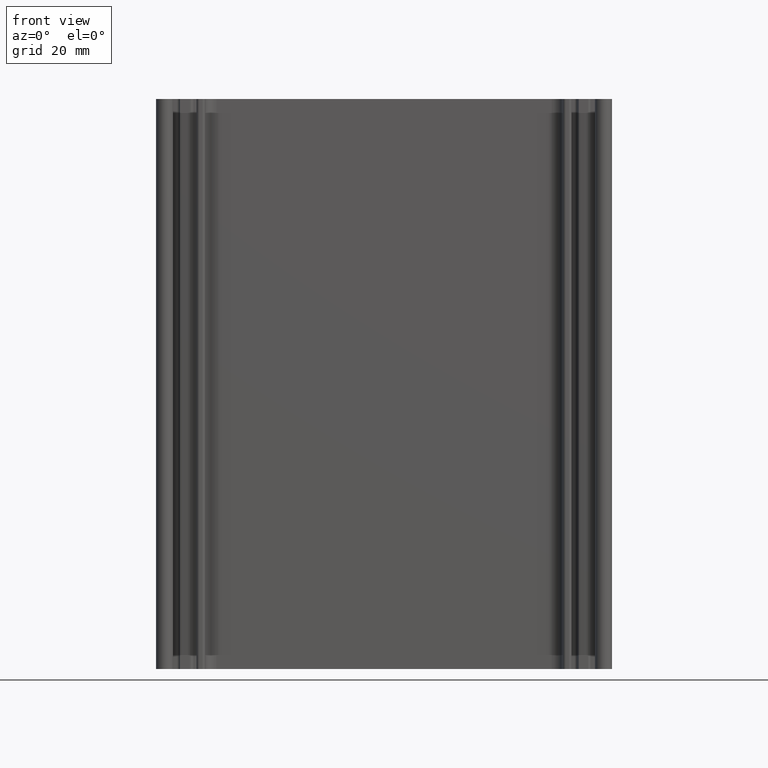
[diagram: clean part render]
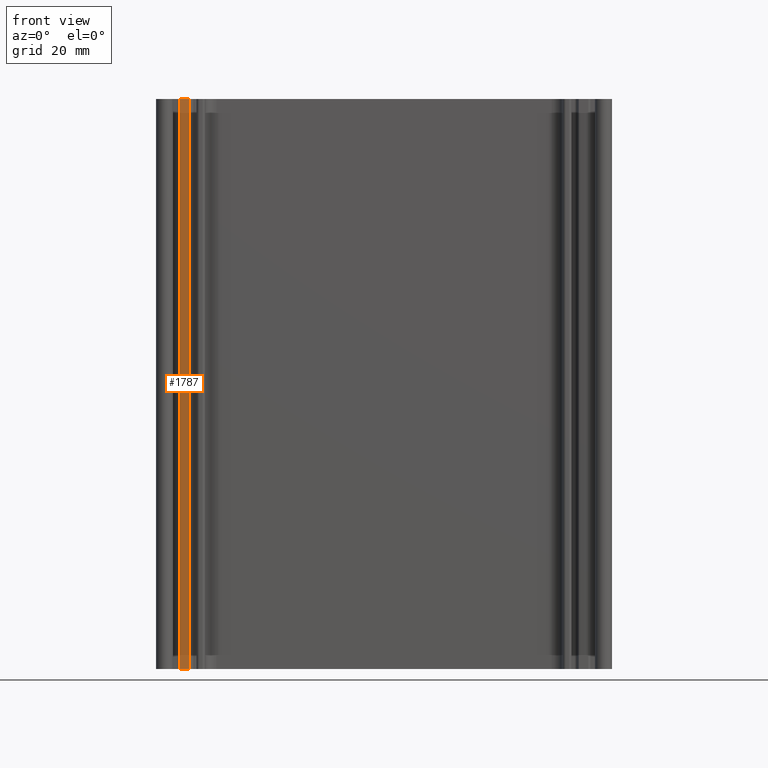
[diagram: same view with one face highlighted and labeled with its STEP entity id]
A machine part, front view. The second image highlights one B-rep face of the part: STEP entity #1787.
In plain terms, the highlighted planar face has unit normal (0, -1, 0).
Its self-contained STEP definition (entity closure, byte-faithful):
#176=FACE_OUTER_BOUND('',#268,.T.);
#268=EDGE_LOOP('',(#1326,#1327,#1328,#1329));
#412=LINE('',#2808,#604);
#413=LINE('',#2811,#605);
#414=LINE('',#2813,#606);
#415=LINE('',#2814,#607);
#604=VECTOR('',#2265,100.);
#605=VECTOR('',#2268,1.63030399);
#606=VECTOR('',#2269,1.63030399);
#607=VECTOR('',#2270,100.);
#788=VERTEX_POINT('',#2804);
#789=VERTEX_POINT('',#2806);
#790=VERTEX_POINT('',#2810);
#791=VERTEX_POINT('',#2812);
#1012=EDGE_CURVE('',#788,#789,#412,.T.);
#1013=EDGE_CURVE('',#790,#788,#413,.T.);
#1014=EDGE_CURVE('',#791,#789,#414,.T.);
#1015=EDGE_CURVE('',#790,#791,#415,.T.);
#1326=ORIENTED_EDGE('',*,*,#1013,.T.);
#1327=ORIENTED_EDGE('',*,*,#1012,.T.);
#1328=ORIENTED_EDGE('',*,*,#1014,.F.);
#1329=ORIENTED_EDGE('',*,*,#1015,.F.);
#1716=PLANE('',#1917);
#1787=ADVANCED_FACE('',(#176),#1716,.T.);
#1917=AXIS2_PLACEMENT_3D('',#2809,#2266,#2267);
#2265=DIRECTION('',(0.,0.,1.));
#2266=DIRECTION('center_axis',(0.,-1.,0.));
#2267=DIRECTION('ref_axis',(1.,0.,0.));
#2268=DIRECTION('',(1.,0.,0.));
#2269=DIRECTION('',(1.,0.,0.));
#2270=DIRECTION('',(0.,0.,1.));
#2804=CARTESIAN_POINT('',(-34.169696,-0.49999997,0.));
#2806=CARTESIAN_POINT('',(-34.169696,-0.49999997,100.));
#2808=CARTESIAN_POINT('',(-34.169696,-0.49999997,0.));
#2809=CARTESIAN_POINT('Origin',(-35.79999999,-0.49999997,0.));
#2810=CARTESIAN_POINT('',(-35.79999999,-0.49999997,0.));
#2811=CARTESIAN_POINT('',(-35.79999999,-0.49999997,0.));
#2812=CARTESIAN_POINT('',(-35.79999999,-0.49999997,100.));
#2813=CARTESIAN_POINT('',(-35.79999999,-0.49999997,100.));
#2814=CARTESIAN_POINT('',(-35.79999999,-0.49999997,0.));